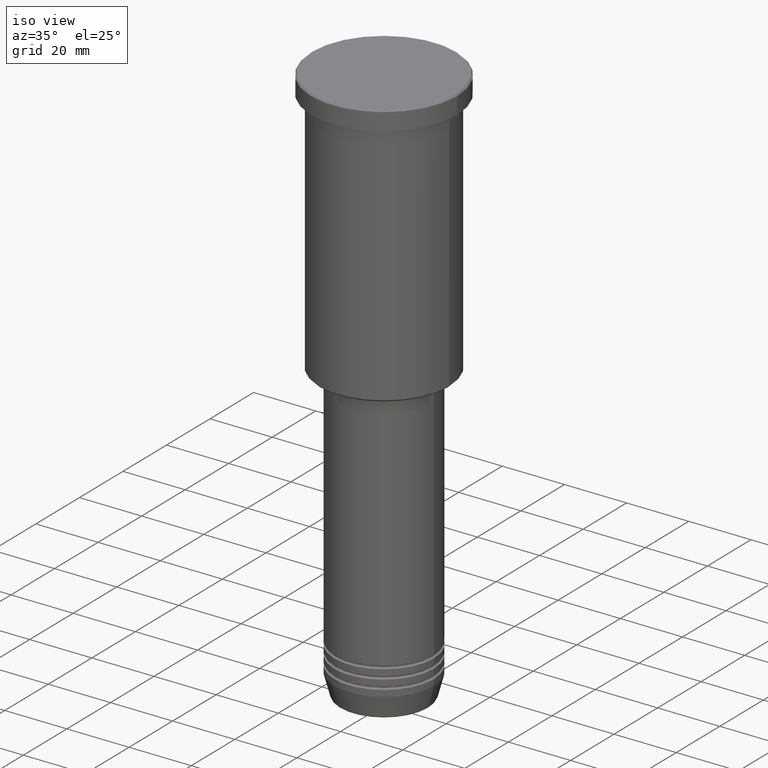
[diagram: clean part render]
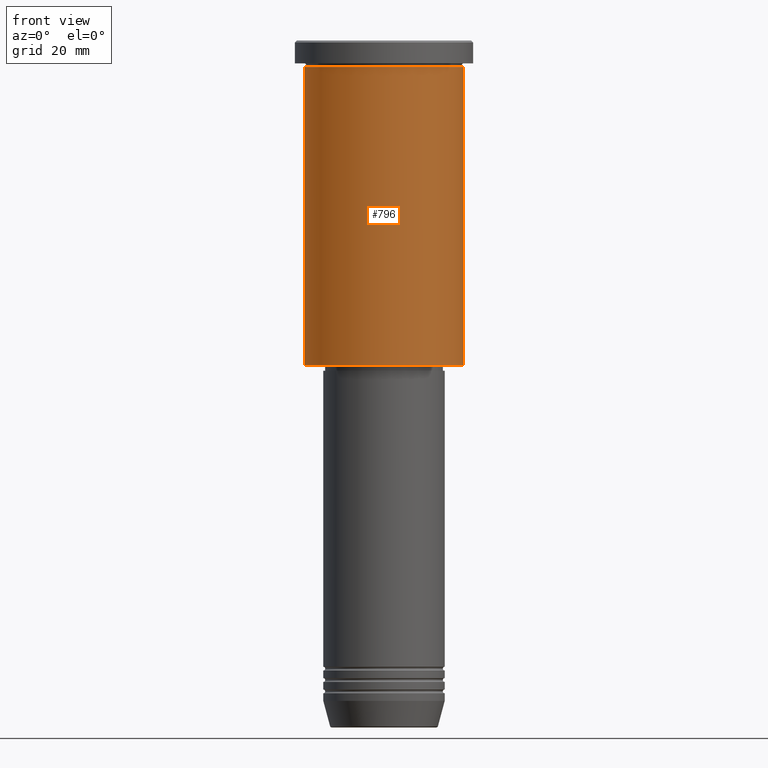
[diagram: tour spotlight — one face highlighted and labeled with its STEP entity id]
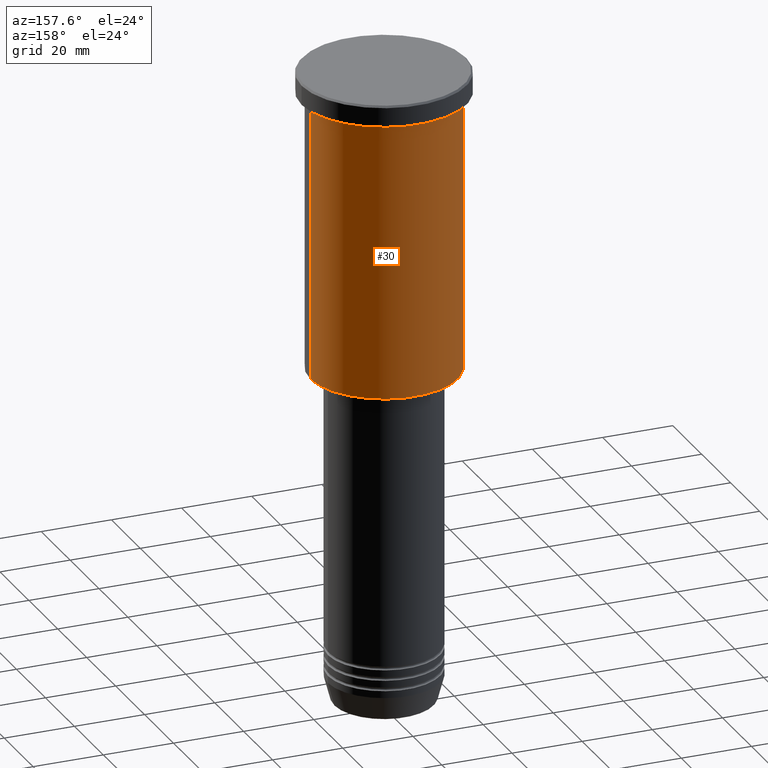
[diagram: tour spotlight — one face highlighted and labeled with its STEP entity id]
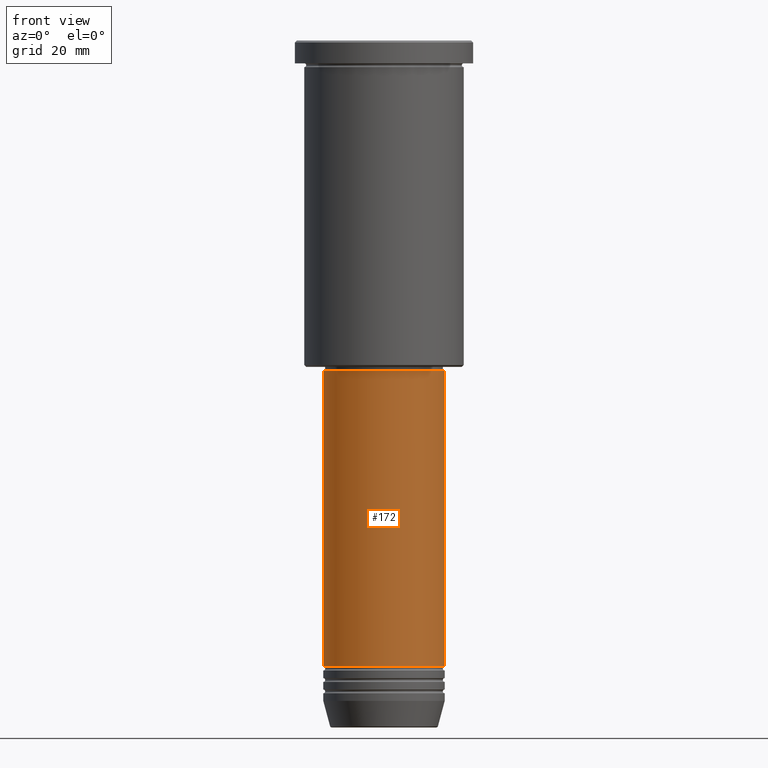
[diagram: tour spotlight — one face highlighted and labeled with its STEP entity id]
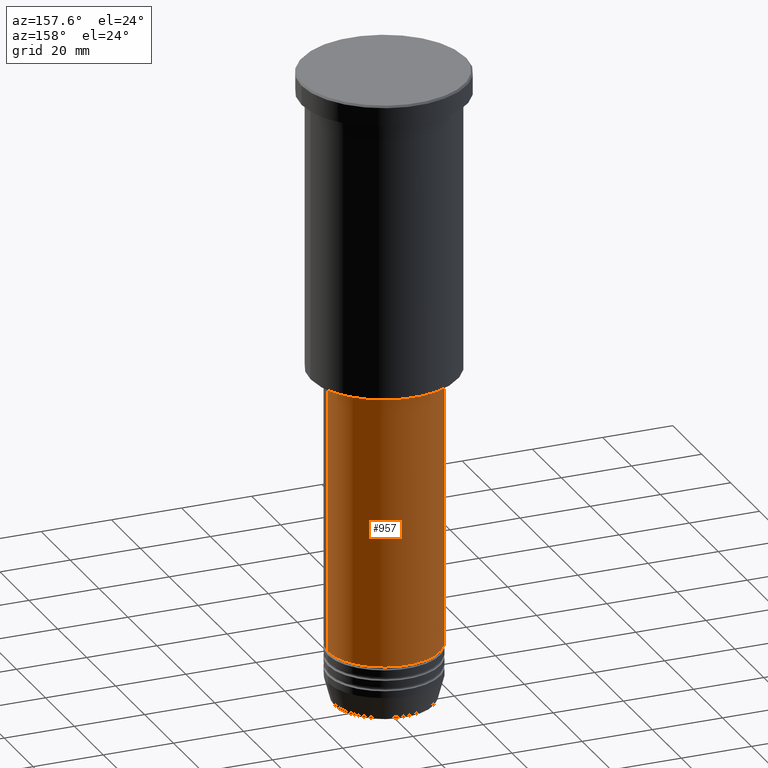
[diagram: tour spotlight — one face highlighted and labeled with its STEP entity id]
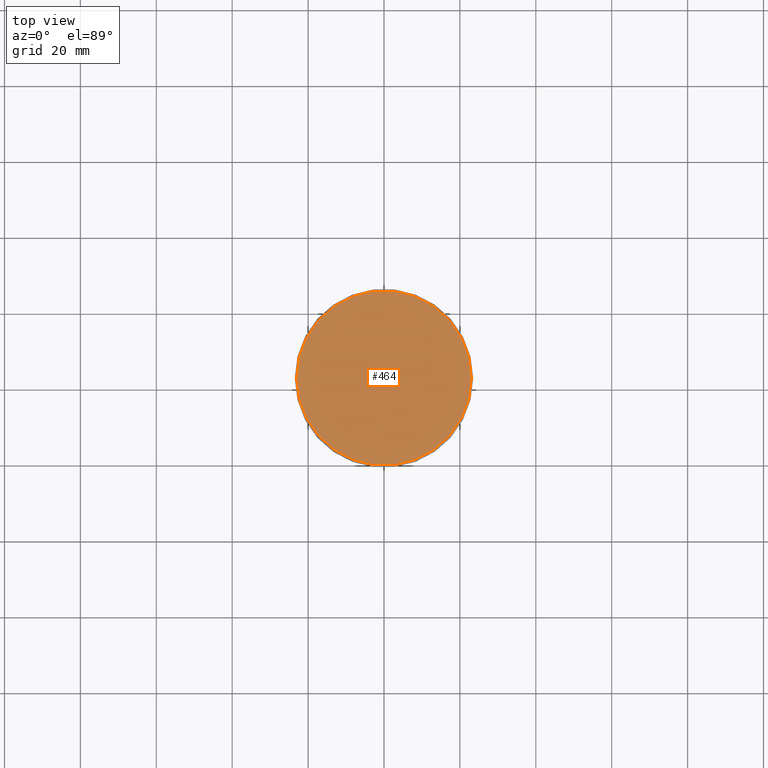
[diagram: tour spotlight — one face highlighted and labeled with its STEP entity id]
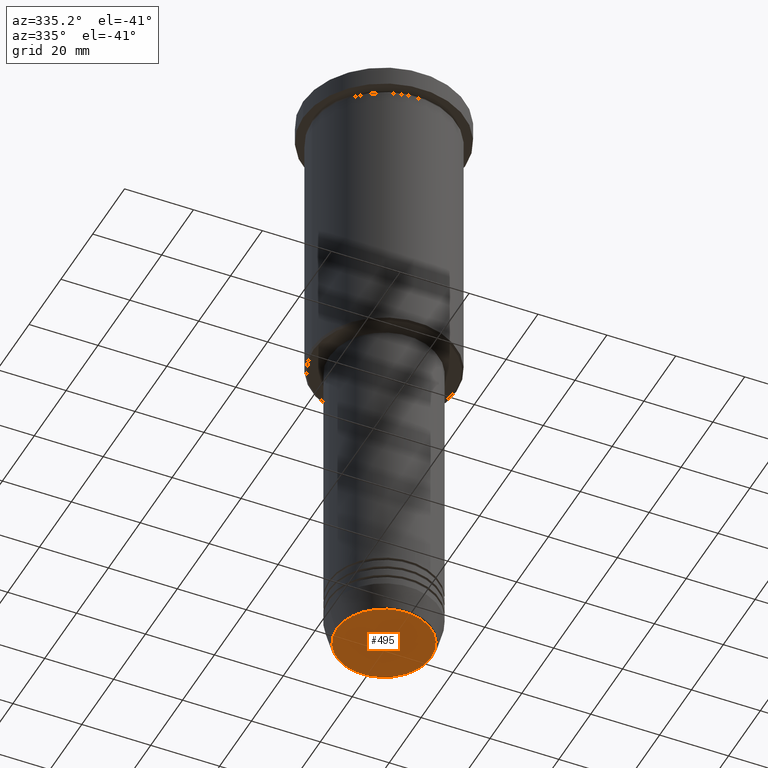
[diagram: tour spotlight — one face highlighted and labeled with its STEP entity id]
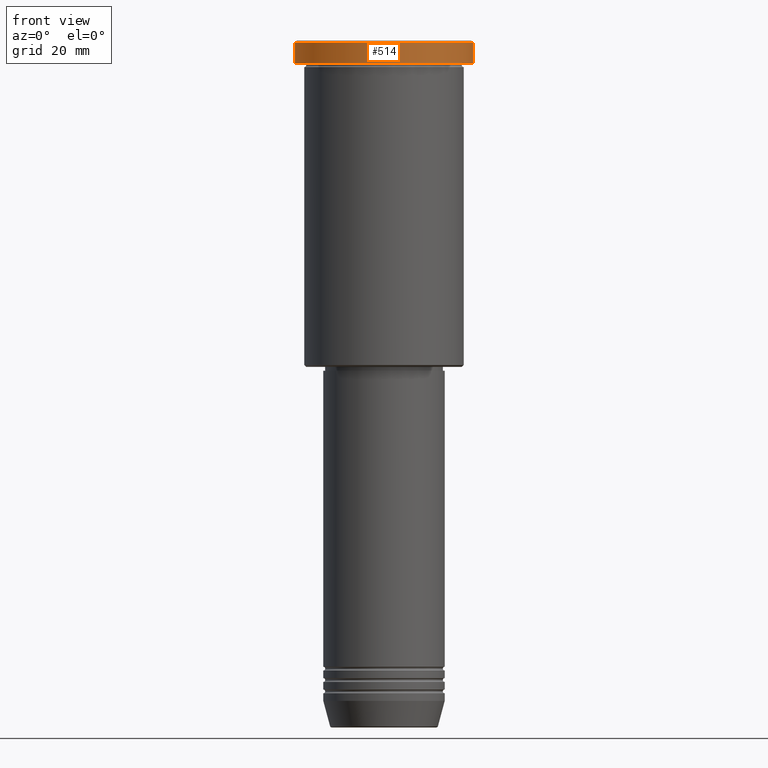
[diagram: tour spotlight — one face highlighted and labeled with its STEP entity id]
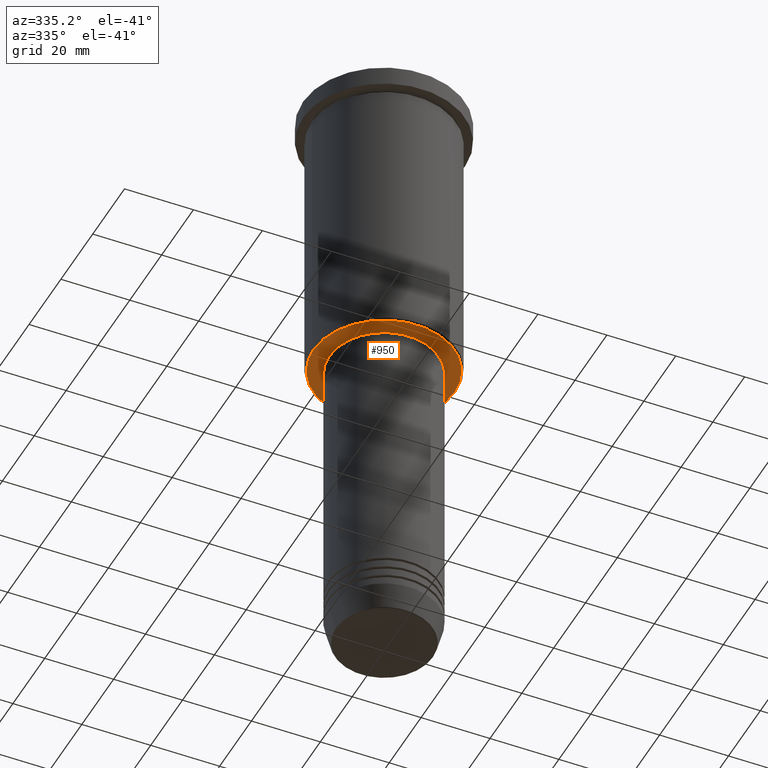
[diagram: tour spotlight — one face highlighted and labeled with its STEP entity id]
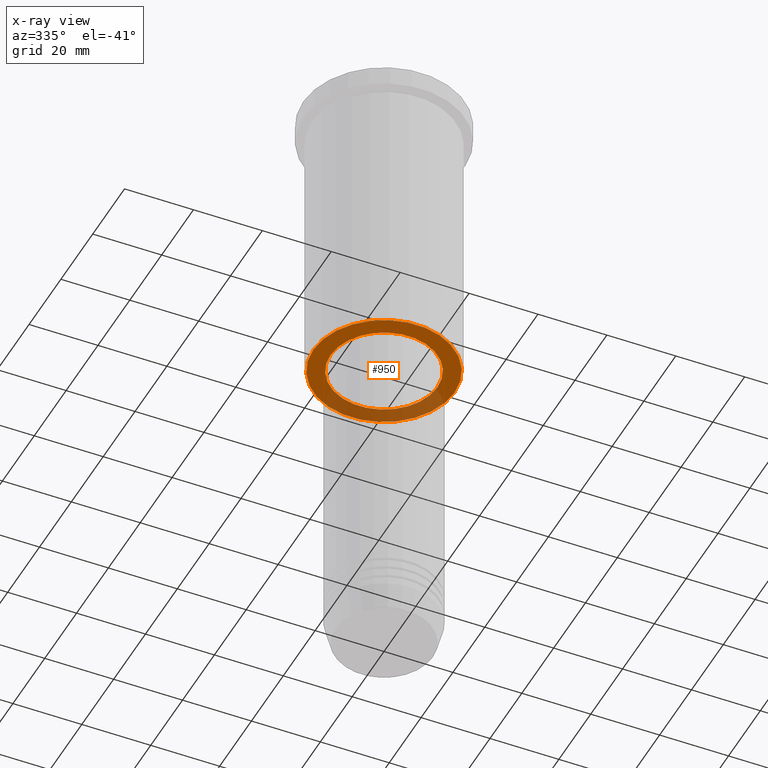
[diagram: x-ray of the same camera — body ghosted, this tour face saturated]
A machine part: a face-by-face anatomy tour. The part has 43 B-rep faces; the first image is the clean iso view, then the 8 largest visible faces are spotlighted one at a time (largest first), each with its STEP entity span.

Face 1 — front view, entity #796. In plain terms, the highlighted cylindrical surface (partial cylindrical patch) has radius 21 mm, axis along (-0, -0, 1).
Definition (entity closure, byte-faithful):
#25 = ORIENTED_EDGE ( 'NONE', *, *, #61, .F. ) ;
#61 = EDGE_CURVE ( 'NONE', #1136, #1170, #937, .T. ) ;
#200 = FACE_OUTER_BOUND ( 'NONE', #813, .T. ) ;
#201 = ORIENTED_EDGE ( 'NONE', *, *, #682, .T. ) ;
#207 = VERTEX_POINT ( 'NONE', #1180 ) ;
#208 = CARTESIAN_POINT ( 'NONE',  ( 0.000000000000000000, 0.000000000000000000, 0.000000000000000000 ) ) ;
#233 = CARTESIAN_POINT ( 'NONE',  ( 21.00000000000000000, 0.000000000000000000, -85.49999999999995737 ) ) ;
#277 = DIRECTION ( 'NONE',  ( -0.000000000000000000, -0.000000000000000000, 1.000000000000000000 ) ) ;
#319 = DIRECTION ( 'NONE',  ( -0.000000000000000000, -0.000000000000000000, 1.000000000000000000 ) ) ;
#328 = CARTESIAN_POINT ( 'NONE',  ( -21.00000000000000000, 2.571758278209441661E-15, 0.000000000000000000 ) ) ;
#338 = DIRECTION ( 'NONE',  ( -0.000000000000000000, -0.000000000000000000, 1.000000000000000000 ) ) ;
#406 = EDGE_CURVE ( 'NONE', #491, #1170, #573, .T. ) ;
#482 = CIRCLE ( 'NONE', #538, 21.00000000000000000 ) ;
#491 = VERTEX_POINT ( 'NONE', #233 ) ;
#505 = LINE ( 'NONE', #328, #659 ) ;
#538 = AXIS2_PLACEMENT_3D ( 'NONE', #631, #338, #1172 ) ;
#561 = CARTESIAN_POINT ( 'NONE',  ( 0.000000000000000000, 0.000000000000000000, -6.999999999999994671 ) ) ;
#573 = LINE ( 'NONE', #629, #939 ) ;
#629 = CARTESIAN_POINT ( 'NONE',  ( 21.00000000000000000, 0.000000000000000000, 0.000000000000000000 ) ) ;
#631 = CARTESIAN_POINT ( 'NONE',  ( 0.000000000000000000, 0.000000000000000000, -85.49999999999995737 ) ) ;
#637 = CARTESIAN_POINT ( 'NONE',  ( -21.00000000000000000, 2.571758278209441661E-15, -6.999999999999994671 ) ) ;
#659 = VECTOR ( 'NONE', #319, 1000.000000000000000 ) ;
#682 = EDGE_CURVE ( 'NONE', #207, #491, #482, .T. ) ;
#728 = DIRECTION ( 'NONE',  ( 1.000000000000000000, 0.000000000000000000, 0.000000000000000000 ) ) ;
#735 = CARTESIAN_POINT ( 'NONE',  ( 21.00000000000000000, 0.000000000000000000, -6.999999999999994671 ) ) ;
#751 = DIRECTION ( 'NONE',  ( 1.000000000000000000, 0.000000000000000000, 0.000000000000000000 ) ) ;
#796 = ADVANCED_FACE ( 'NONE', ( #200 ), #1107, .T. ) ;
#813 = EDGE_LOOP ( 'NONE', ( #1114, #201, #1054, #25 ) ) ;
#818 = DIRECTION ( 'NONE',  ( -0.000000000000000000, -0.000000000000000000, 1.000000000000000000 ) ) ;
#937 = CIRCLE ( 'NONE', #1097, 21.00000000000000000 ) ;
#939 = VECTOR ( 'NONE', #277, 1000.000000000000000 ) ;
#986 = EDGE_CURVE ( 'NONE', #207, #1136, #505, .T. ) ;
#1036 = DIRECTION ( 'NONE',  ( -0.000000000000000000, -0.000000000000000000, 1.000000000000000000 ) ) ;
#1054 = ORIENTED_EDGE ( 'NONE', *, *, #406, .T. ) ;
#1097 = AXIS2_PLACEMENT_3D ( 'NONE', #561, #818, #728 ) ;
#1107 = CYLINDRICAL_SURFACE ( 'NONE', #1174, 21.00000000000000000 ) ;
#1114 = ORIENTED_EDGE ( 'NONE', *, *, #986, .F. ) ;
#1136 = VERTEX_POINT ( 'NONE', #637 ) ;
#1170 = VERTEX_POINT ( 'NONE', #735 ) ;
#1172 = DIRECTION ( 'NONE',  ( -1.000000000000000000, 0.000000000000000000, 0.000000000000000000 ) ) ;
#1174 = AXIS2_PLACEMENT_3D ( 'NONE', #208, #1036, #751 ) ;
#1180 = CARTESIAN_POINT ( 'NONE',  ( -21.00000000000000000, 2.571758278209441661E-15, -85.49999999999995737 ) ) ;

Face 2 — auxiliary view, entity #30. In plain terms, the highlighted cylindrical surface (partial cylindrical patch) has radius 21 mm, axis along (-0, -0, 1).
Definition (entity closure, byte-faithful):
#9 = ORIENTED_EDGE ( 'NONE', *, *, #431, .F. ) ;
#30 = ADVANCED_FACE ( 'NONE', ( #1018 ), #742, .T. ) ;
#99 = AXIS2_PLACEMENT_3D ( 'NONE', #1089, #761, #1022 ) ;
#176 = DIRECTION ( 'NONE',  ( 1.000000000000000000, 0.000000000000000000, 0.000000000000000000 ) ) ;
#207 = VERTEX_POINT ( 'NONE', #1180 ) ;
#233 = CARTESIAN_POINT ( 'NONE',  ( 21.00000000000000000, 0.000000000000000000, -85.49999999999995737 ) ) ;
#244 = DIRECTION ( 'NONE',  ( -0.000000000000000000, -0.000000000000000000, 1.000000000000000000 ) ) ;
#261 = EDGE_CURVE ( 'NONE', #491, #207, #435, .T. ) ;
#277 = DIRECTION ( 'NONE',  ( -0.000000000000000000, -0.000000000000000000, 1.000000000000000000 ) ) ;
#290 = CIRCLE ( 'NONE', #416, 21.00000000000000000 ) ;
#311 = EDGE_LOOP ( 'NONE', ( #632, #506, #9, #839 ) ) ;
#319 = DIRECTION ( 'NONE',  ( -0.000000000000000000, -0.000000000000000000, 1.000000000000000000 ) ) ;
#328 = CARTESIAN_POINT ( 'NONE',  ( -21.00000000000000000, 2.571758278209441661E-15, 0.000000000000000000 ) ) ;
#375 = DIRECTION ( 'NONE',  ( 1.000000000000000000, 0.000000000000000000, 0.000000000000000000 ) ) ;
#406 = EDGE_CURVE ( 'NONE', #491, #1170, #573, .T. ) ;
#416 = AXIS2_PLACEMENT_3D ( 'NONE', #1000, #244, #176 ) ;
#431 = EDGE_CURVE ( 'NONE', #1170, #1136, #290, .T. ) ;
#435 = CIRCLE ( 'NONE', #99, 21.00000000000000000 ) ;
#491 = VERTEX_POINT ( 'NONE', #233 ) ;
#505 = LINE ( 'NONE', #328, #659 ) ;
#506 = ORIENTED_EDGE ( 'NONE', *, *, #986, .T. ) ;
#573 = LINE ( 'NONE', #629, #939 ) ;
#613 = AXIS2_PLACEMENT_3D ( 'NONE', #711, #1081, #375 ) ;
#629 = CARTESIAN_POINT ( 'NONE',  ( 21.00000000000000000, 0.000000000000000000, 0.000000000000000000 ) ) ;
#632 = ORIENTED_EDGE ( 'NONE', *, *, #261, .T. ) ;
#637 = CARTESIAN_POINT ( 'NONE',  ( -21.00000000000000000, 2.571758278209441661E-15, -6.999999999999994671 ) ) ;
#659 = VECTOR ( 'NONE', #319, 1000.000000000000000 ) ;
#711 = CARTESIAN_POINT ( 'NONE',  ( 0.000000000000000000, 0.000000000000000000, 0.000000000000000000 ) ) ;
#735 = CARTESIAN_POINT ( 'NONE',  ( 21.00000000000000000, 0.000000000000000000, -6.999999999999994671 ) ) ;
#742 = CYLINDRICAL_SURFACE ( 'NONE', #613, 21.00000000000000000 ) ;
#761 = DIRECTION ( 'NONE',  ( -0.000000000000000000, -0.000000000000000000, 1.000000000000000000 ) ) ;
#839 = ORIENTED_EDGE ( 'NONE', *, *, #406, .F. ) ;
#939 = VECTOR ( 'NONE', #277, 1000.000000000000000 ) ;
#986 = EDGE_CURVE ( 'NONE', #207, #1136, #505, .T. ) ;
#1000 = CARTESIAN_POINT ( 'NONE',  ( 0.000000000000000000, 0.000000000000000000, -6.999999999999994671 ) ) ;
#1018 = FACE_OUTER_BOUND ( 'NONE', #311, .T. ) ;
#1022 = DIRECTION ( 'NONE',  ( -1.000000000000000000, 0.000000000000000000, 0.000000000000000000 ) ) ;
#1081 = DIRECTION ( 'NONE',  ( -0.000000000000000000, -0.000000000000000000, 1.000000000000000000 ) ) ;
#1089 = CARTESIAN_POINT ( 'NONE',  ( 0.000000000000000000, 0.000000000000000000, -85.49999999999995737 ) ) ;
#1136 = VERTEX_POINT ( 'NONE', #637 ) ;
#1170 = VERTEX_POINT ( 'NONE', #735 ) ;
#1180 = CARTESIAN_POINT ( 'NONE',  ( -21.00000000000000000, 2.571758278209441661E-15, -85.49999999999995737 ) ) ;

Face 3 — front view, entity #172. In plain terms, the highlighted cylindrical surface (partial cylindrical patch) has radius 16 mm, axis along (-0, -0, 1).
Definition (entity closure, byte-faithful):
#4 = CARTESIAN_POINT ( 'NONE',  ( 0.000000000000000000, 0.000000000000000000, -87.00000000000002842 ) ) ;
#63 = AXIS2_PLACEMENT_3D ( 'NONE', #719, #250, #432 ) ;
#82 = ORIENTED_EDGE ( 'NONE', *, *, #339, .T. ) ;
#111 = DIRECTION ( 'NONE',  ( 1.000000000000000000, 0.000000000000000000, 0.000000000000000000 ) ) ;
#172 = ADVANCED_FACE ( 'NONE', ( #589 ), #582, .T. ) ;
#174 = ORIENTED_EDGE ( 'NONE', *, *, #703, .T. ) ;
#199 = EDGE_CURVE ( 'NONE', #1048, #429, #1070, .T. ) ;
#230 = EDGE_CURVE ( 'NONE', #429, #1017, #434, .T. ) ;
#248 = CARTESIAN_POINT ( 'NONE',  ( 16.00000000000000000, 0.000000000000000000, 0.000000000000000000 ) ) ;
#250 = DIRECTION ( 'NONE',  ( -0.000000000000000000, -0.000000000000000000, 1.000000000000000000 ) ) ;
#271 = DIRECTION ( 'NONE',  ( -0.000000000000000000, -0.000000000000000000, 1.000000000000000000 ) ) ;
#326 = VECTOR ( 'NONE', #271, 1000.000000000000000 ) ;
#339 = EDGE_CURVE ( 'NONE', #1048, #699, #1115, .T. ) ;
#346 = LINE ( 'NONE', #248, #326 ) ;
#376 = DIRECTION ( 'NONE',  ( -0.000000000000000000, -0.000000000000000000, 1.000000000000000000 ) ) ;
#425 = CARTESIAN_POINT ( 'NONE',  ( 16.00000000000000000, 0.000000000000000000, -164.9999999999999716 ) ) ;
#429 = VERTEX_POINT ( 'NONE', #623 ) ;
#432 = DIRECTION ( 'NONE',  ( 1.000000000000000000, 0.000000000000000000, 0.000000000000000000 ) ) ;
#434 = CIRCLE ( 'NONE', #1113, 16.00000000000000000 ) ;
#490 = DIRECTION ( 'NONE',  ( 1.000000000000000000, 0.000000000000000000, 0.000000000000000000 ) ) ;
#497 = EDGE_LOOP ( 'NONE', ( #1088, #82, #174, #1060 ) ) ;
#542 = CARTESIAN_POINT ( 'NONE',  ( -16.00000000000000000, 1.959434878635765131E-15, 0.000000000000000000 ) ) ;
#582 = CYLINDRICAL_SURFACE ( 'NONE', #1149, 16.00000000000000000 ) ;
#589 = FACE_OUTER_BOUND ( 'NONE', #497, .T. ) ;
#604 = CARTESIAN_POINT ( 'NONE',  ( 0.000000000000000000, 0.000000000000000000, 0.000000000000000000 ) ) ;
#623 = CARTESIAN_POINT ( 'NONE',  ( -16.00000000000000000, 1.959434878635765131E-15, -87.00000000000002842 ) ) ;
#634 = VECTOR ( 'NONE', #996, 1000.000000000000000 ) ;
#695 = CARTESIAN_POINT ( 'NONE',  ( 16.00000000000000000, 0.000000000000000000, -87.00000000000002842 ) ) ;
#699 = VERTEX_POINT ( 'NONE', #425 ) ;
#703 = EDGE_CURVE ( 'NONE', #699, #1017, #346, .T. ) ;
#719 = CARTESIAN_POINT ( 'NONE',  ( 0.000000000000000000, 0.000000000000000000, -164.9999999999999716 ) ) ;
#946 = DIRECTION ( 'NONE',  ( -0.000000000000000000, -0.000000000000000000, 1.000000000000000000 ) ) ;
#996 = DIRECTION ( 'NONE',  ( -0.000000000000000000, -0.000000000000000000, 1.000000000000000000 ) ) ;
#1017 = VERTEX_POINT ( 'NONE', #695 ) ;
#1048 = VERTEX_POINT ( 'NONE', #1093 ) ;
#1060 = ORIENTED_EDGE ( 'NONE', *, *, #230, .F. ) ;
#1070 = LINE ( 'NONE', #542, #634 ) ;
#1088 = ORIENTED_EDGE ( 'NONE', *, *, #199, .F. ) ;
#1093 = CARTESIAN_POINT ( 'NONE',  ( -16.00000000000000000, 1.959434878635765131E-15, -164.9999999999999716 ) ) ;
#1113 = AXIS2_PLACEMENT_3D ( 'NONE', #4, #376, #111 ) ;
#1115 = CIRCLE ( 'NONE', #63, 16.00000000000000000 ) ;
#1149 = AXIS2_PLACEMENT_3D ( 'NONE', #604, #946, #490 ) ;

Face 4 — auxiliary view, entity #957. In plain terms, the highlighted cylindrical surface (partial cylindrical patch) has radius 16 mm, axis along (-0, -0, 1).
Definition (entity closure, byte-faithful):
#53 = DIRECTION ( 'NONE',  ( -0.000000000000000000, -0.000000000000000000, 1.000000000000000000 ) ) ;
#86 = EDGE_CURVE ( 'NONE', #699, #1048, #843, .T. ) ;
#145 = EDGE_LOOP ( 'NONE', ( #295, #1123, #696, #187 ) ) ;
#152 = AXIS2_PLACEMENT_3D ( 'NONE', #156, #1084, #906 ) ;
#156 = CARTESIAN_POINT ( 'NONE',  ( 0.000000000000000000, 0.000000000000000000, -87.00000000000002842 ) ) ;
#166 = DIRECTION ( 'NONE',  ( -0.000000000000000000, -0.000000000000000000, 1.000000000000000000 ) ) ;
#187 = ORIENTED_EDGE ( 'NONE', *, *, #703, .F. ) ;
#193 = AXIS2_PLACEMENT_3D ( 'NONE', #547, #166, #718 ) ;
#199 = EDGE_CURVE ( 'NONE', #1048, #429, #1070, .T. ) ;
#248 = CARTESIAN_POINT ( 'NONE',  ( 16.00000000000000000, 0.000000000000000000, 0.000000000000000000 ) ) ;
#271 = DIRECTION ( 'NONE',  ( -0.000000000000000000, -0.000000000000000000, 1.000000000000000000 ) ) ;
#292 = CIRCLE ( 'NONE', #152, 16.00000000000000000 ) ;
#295 = ORIENTED_EDGE ( 'NONE', *, *, #86, .T. ) ;
#326 = VECTOR ( 'NONE', #271, 1000.000000000000000 ) ;
#346 = LINE ( 'NONE', #248, #326 ) ;
#425 = CARTESIAN_POINT ( 'NONE',  ( 16.00000000000000000, 0.000000000000000000, -164.9999999999999716 ) ) ;
#429 = VERTEX_POINT ( 'NONE', #623 ) ;
#438 = AXIS2_PLACEMENT_3D ( 'NONE', #1160, #53, #1146 ) ;
#542 = CARTESIAN_POINT ( 'NONE',  ( -16.00000000000000000, 1.959434878635765131E-15, 0.000000000000000000 ) ) ;
#547 = CARTESIAN_POINT ( 'NONE',  ( 0.000000000000000000, 0.000000000000000000, -164.9999999999999716 ) ) ;
#623 = CARTESIAN_POINT ( 'NONE',  ( -16.00000000000000000, 1.959434878635765131E-15, -87.00000000000002842 ) ) ;
#634 = VECTOR ( 'NONE', #996, 1000.000000000000000 ) ;
#678 = CYLINDRICAL_SURFACE ( 'NONE', #438, 16.00000000000000000 ) ;
#695 = CARTESIAN_POINT ( 'NONE',  ( 16.00000000000000000, 0.000000000000000000, -87.00000000000002842 ) ) ;
#696 = ORIENTED_EDGE ( 'NONE', *, *, #1068, .F. ) ;
#699 = VERTEX_POINT ( 'NONE', #425 ) ;
#703 = EDGE_CURVE ( 'NONE', #699, #1017, #346, .T. ) ;
#718 = DIRECTION ( 'NONE',  ( 1.000000000000000000, 0.000000000000000000, 0.000000000000000000 ) ) ;
#843 = CIRCLE ( 'NONE', #193, 16.00000000000000000 ) ;
#906 = DIRECTION ( 'NONE',  ( 1.000000000000000000, 0.000000000000000000, 0.000000000000000000 ) ) ;
#947 = FACE_OUTER_BOUND ( 'NONE', #145, .T. ) ;
#957 = ADVANCED_FACE ( 'NONE', ( #947 ), #678, .T. ) ;
#996 = DIRECTION ( 'NONE',  ( -0.000000000000000000, -0.000000000000000000, 1.000000000000000000 ) ) ;
#1017 = VERTEX_POINT ( 'NONE', #695 ) ;
#1048 = VERTEX_POINT ( 'NONE', #1093 ) ;
#1068 = EDGE_CURVE ( 'NONE', #1017, #429, #292, .T. ) ;
#1070 = LINE ( 'NONE', #542, #634 ) ;
#1084 = DIRECTION ( 'NONE',  ( -0.000000000000000000, -0.000000000000000000, 1.000000000000000000 ) ) ;
#1093 = CARTESIAN_POINT ( 'NONE',  ( -16.00000000000000000, 1.959434878635765131E-15, -164.9999999999999716 ) ) ;
#1123 = ORIENTED_EDGE ( 'NONE', *, *, #199, .T. ) ;
#1146 = DIRECTION ( 'NONE',  ( 1.000000000000000000, 0.000000000000000000, 0.000000000000000000 ) ) ;
#1160 = CARTESIAN_POINT ( 'NONE',  ( 0.000000000000000000, 0.000000000000000000, 0.000000000000000000 ) ) ;

Face 5 — top view, entity #464. In plain terms, the highlighted planar face has unit normal (0, -0, 1).
Definition (entity closure, byte-faithful):
#100 = AXIS2_PLACEMENT_3D ( 'NONE', #1010, #165, #641 ) ;
#110 = EDGE_CURVE ( 'NONE', #522, #1181, #1073, .T. ) ;
#165 = DIRECTION ( 'NONE',  ( -0.000000000000000000, -0.000000000000000000, 1.000000000000000000 ) ) ;
#186 = DIRECTION ( 'NONE',  ( 1.000000000000000000, 0.000000000000000000, 0.000000000000000000 ) ) ;
#459 = CARTESIAN_POINT ( 'NONE',  ( 0.000000000000000000, 0.000000000000000000, 0.000000000000000000 ) ) ;
#464 = ADVANCED_FACE ( 'NONE', ( #597 ), #1028, .T. ) ;
#522 = VERTEX_POINT ( 'NONE', #628 ) ;
#530 = DIRECTION ( 'NONE',  ( 1.000000000000000000, 0.000000000000000000, 0.000000000000000000 ) ) ;
#597 = FACE_OUTER_BOUND ( 'NONE', #822, .T. ) ;
#624 = EDGE_CURVE ( 'NONE', #1181, #522, #737, .T. ) ;
#627 = CARTESIAN_POINT ( 'NONE',  ( 0.000000000000000000, 0.000000000000000000, 0.000000000000000000 ) ) ;
#628 = CARTESIAN_POINT ( 'NONE',  ( 23.00000000000002487, 2.847303808017597717E-15, 0.000000000000000000 ) ) ;
#641 = DIRECTION ( 'NONE',  ( 1.000000000000000000, 0.000000000000000000, 0.000000000000000000 ) ) ;
#737 = CIRCLE ( 'NONE', #100, 23.00000000000002487 ) ;
#775 = ORIENTED_EDGE ( 'NONE', *, *, #110, .T. ) ;
#795 = CARTESIAN_POINT ( 'NONE',  ( -23.00000000000002487, 0.000000000000000000, 0.000000000000000000 ) ) ;
#817 = DIRECTION ( 'NONE',  ( 0.000000000000000000, -0.000000000000000000, 1.000000000000000000 ) ) ;
#822 = EDGE_LOOP ( 'NONE', ( #1144, #775 ) ) ;
#880 = AXIS2_PLACEMENT_3D ( 'NONE', #459, #817, #186 ) ;
#988 = DIRECTION ( 'NONE',  ( -0.000000000000000000, -0.000000000000000000, 1.000000000000000000 ) ) ;
#1010 = CARTESIAN_POINT ( 'NONE',  ( 0.000000000000000000, 0.000000000000000000, 0.000000000000000000 ) ) ;
#1028 = PLANE ( 'NONE',  #880 ) ;
#1040 = AXIS2_PLACEMENT_3D ( 'NONE', #627, #988, #530 ) ;
#1073 = CIRCLE ( 'NONE', #1040, 23.00000000000002487 ) ;
#1144 = ORIENTED_EDGE ( 'NONE', *, *, #624, .T. ) ;
#1181 = VERTEX_POINT ( 'NONE', #795 ) ;

Face 6 — auxiliary view, entity #495. In plain terms, the highlighted planar face has unit normal (0, -0, 1).
Definition (entity closure, byte-faithful):
#6 = EDGE_CURVE ( 'NONE', #694, #106, #1133, .T. ) ;
#60 = DIRECTION ( 'NONE',  ( 0.000000000000000000, 0.000000000000000000, -1.000000000000000000 ) ) ;
#106 = VERTEX_POINT ( 'NONE', #258 ) ;
#115 = AXIS2_PLACEMENT_3D ( 'NONE', #337, #60, #159 ) ;
#124 = PLANE ( 'NONE',  #302 ) ;
#143 = ORIENTED_EDGE ( 'NONE', *, *, #1148, .T. ) ;
#159 = DIRECTION ( 'NONE',  ( 1.000000000000000000, 0.000000000000000000, 0.000000000000000000 ) ) ;
#258 = CARTESIAN_POINT ( 'NONE',  ( 13.74069215899266894, 0.000000000000000000, -181.0000000000000000 ) ) ;
#302 = AXIS2_PLACEMENT_3D ( 'NONE', #683, #1043, #935 ) ;
#321 = FACE_OUTER_BOUND ( 'NONE', #521, .T. ) ;
#337 = CARTESIAN_POINT ( 'NONE',  ( 0.000000000000000000, 0.000000000000000000, -181.0000000000000000 ) ) ;
#351 = CARTESIAN_POINT ( 'NONE',  ( -13.74069215899266894, 1.712322416342417563E-15, -181.0000000000000000 ) ) ;
#495 = ADVANCED_FACE ( 'NONE', ( #321 ), #124, .F. ) ;
#521 = EDGE_LOOP ( 'NONE', ( #143, #982 ) ) ;
#544 = DIRECTION ( 'NONE',  ( 0.000000000000000000, 0.000000000000000000, -1.000000000000000000 ) ) ;
#657 = CIRCLE ( 'NONE', #884, 13.74069215899266894 ) ;
#683 = CARTESIAN_POINT ( 'NONE',  ( 0.000000000000000000, 0.000000000000000000, -181.0000000000000000 ) ) ;
#694 = VERTEX_POINT ( 'NONE', #351 ) ;
#884 = AXIS2_PLACEMENT_3D ( 'NONE', #969, #544, #892 ) ;
#892 = DIRECTION ( 'NONE',  ( 1.000000000000000000, 0.000000000000000000, 0.000000000000000000 ) ) ;
#935 = DIRECTION ( 'NONE',  ( 1.000000000000000000, 0.000000000000000000, 0.000000000000000000 ) ) ;
#969 = CARTESIAN_POINT ( 'NONE',  ( 0.000000000000000000, 0.000000000000000000, -181.0000000000000000 ) ) ;
#982 = ORIENTED_EDGE ( 'NONE', *, *, #6, .T. ) ;
#1043 = DIRECTION ( 'NONE',  ( 0.000000000000000000, -0.000000000000000000, 1.000000000000000000 ) ) ;
#1133 = CIRCLE ( 'NONE', #115, 13.74069215899266894 ) ;
#1148 = EDGE_CURVE ( 'NONE', #106, #694, #657, .T. ) ;

Face 7 — front view, entity #514. In plain terms, the highlighted cylindrical surface (partial cylindrical patch) has radius 23.5 mm, axis along (-0, -0, 1).
Definition (entity closure, byte-faithful):
#46 = ORIENTED_EDGE ( 'NONE', *, *, #608, .T. ) ;
#77 = VECTOR ( 'NONE', #626, 1000.000000000000000 ) ;
#154 = CARTESIAN_POINT ( 'NONE',  ( -23.50000000000000000, 2.877919977996280320E-15, 0.000000000000000000 ) ) ;
#157 = VERTEX_POINT ( 'NONE', #777 ) ;
#194 = LINE ( 'NONE', #154, #195 ) ;
#195 = VECTOR ( 'NONE', #259, 1000.000000000000000 ) ;
#222 = DIRECTION ( 'NONE',  ( -0.000000000000000000, -0.000000000000000000, 1.000000000000000000 ) ) ;
#234 = ORIENTED_EDGE ( 'NONE', *, *, #689, .T. ) ;
#252 = EDGE_CURVE ( 'NONE', #1094, #552, #194, .T. ) ;
#255 = DIRECTION ( 'NONE',  ( -0.000000000000000000, -0.000000000000000000, 1.000000000000000000 ) ) ;
#259 = DIRECTION ( 'NONE',  ( -0.000000000000000000, -0.000000000000000000, 1.000000000000000000 ) ) ;
#310 = CARTESIAN_POINT ( 'NONE',  ( 0.000000000000000000, 0.000000000000000000, 0.000000000000000000 ) ) ;
#365 = AXIS2_PLACEMENT_3D ( 'NONE', #512, #440, #489 ) ;
#367 = CIRCLE ( 'NONE', #501, 23.50000000000000000 ) ;
#440 = DIRECTION ( 'NONE',  ( 0.000000000000000000, 0.000000000000000000, -1.000000000000000000 ) ) ;
#489 = DIRECTION ( 'NONE',  ( 1.000000000000000000, 0.000000000000000000, 0.000000000000000000 ) ) ;
#501 = AXIS2_PLACEMENT_3D ( 'NONE', #630, #255, #823 ) ;
#512 = CARTESIAN_POINT ( 'NONE',  ( 0.000000000000000000, 0.000000000000000000, -0.5000000000000004441 ) ) ;
#514 = ADVANCED_FACE ( 'NONE', ( #873 ), #1058, .T. ) ;
#537 = CARTESIAN_POINT ( 'NONE',  ( -23.50000000000000000, 2.877919977996280320E-15, -5.999999999999994671 ) ) ;
#545 = LINE ( 'NONE', #1095, #77 ) ;
#552 = VERTEX_POINT ( 'NONE', #981 ) ;
#568 = ORIENTED_EDGE ( 'NONE', *, *, #1139, .T. ) ;
#576 = CARTESIAN_POINT ( 'NONE',  ( 23.50000000000000000, 0.000000000000000000, -0.5000000000000004441 ) ) ;
#608 = EDGE_CURVE ( 'NONE', #859, #552, #961, .T. ) ;
#626 = DIRECTION ( 'NONE',  ( -0.000000000000000000, -0.000000000000000000, 1.000000000000000000 ) ) ;
#630 = CARTESIAN_POINT ( 'NONE',  ( 0.000000000000000000, 0.000000000000000000, -5.999999999999994671 ) ) ;
#689 = EDGE_CURVE ( 'NONE', #157, #859, #545, .T. ) ;
#777 = CARTESIAN_POINT ( 'NONE',  ( 23.50000000000000000, 0.000000000000000000, -5.999999999999994671 ) ) ;
#823 = DIRECTION ( 'NONE',  ( 1.000000000000000000, 0.000000000000000000, 0.000000000000000000 ) ) ;
#859 = VERTEX_POINT ( 'NONE', #576 ) ;
#873 = FACE_OUTER_BOUND ( 'NONE', #1145, .T. ) ;
#954 = DIRECTION ( 'NONE',  ( 1.000000000000000000, 0.000000000000000000, 0.000000000000000000 ) ) ;
#961 = CIRCLE ( 'NONE', #365, 23.50000000000000000 ) ;
#981 = CARTESIAN_POINT ( 'NONE',  ( -23.50000000000000000, 2.877919977996280320E-15, -0.5000000000000004441 ) ) ;
#1058 = CYLINDRICAL_SURFACE ( 'NONE', #1074, 23.50000000000000000 ) ;
#1074 = AXIS2_PLACEMENT_3D ( 'NONE', #310, #222, #954 ) ;
#1094 = VERTEX_POINT ( 'NONE', #537 ) ;
#1095 = CARTESIAN_POINT ( 'NONE',  ( 23.50000000000000000, 0.000000000000000000, 0.000000000000000000 ) ) ;
#1139 = EDGE_CURVE ( 'NONE', #1094, #157, #367, .T. ) ;
#1145 = EDGE_LOOP ( 'NONE', ( #1183, #568, #234, #46 ) ) ;
#1183 = ORIENTED_EDGE ( 'NONE', *, *, #252, .F. ) ;

Face 8 — auxiliary view, entity #950. An x-ray twin of the same camera follows (body ghosted, this face saturated) — the face is partly hidden behind the body. In plain terms, the highlighted planar face has unit normal (0, 0, -1).
Definition (entity closure, byte-faithful):
#3 = DIRECTION ( 'NONE',  ( 0.000000000000000000, 0.000000000000000000, -1.000000000000000000 ) ) ;
#13 = CIRCLE ( 'NONE', #325, 15.50000000000000000 ) ;
#65 = AXIS2_PLACEMENT_3D ( 'NONE', #407, #1046, #224 ) ;
#75 = DIRECTION ( 'NONE',  ( -1.000000000000000000, 0.000000000000000000, 0.000000000000000000 ) ) ;
#89 = ORIENTED_EDGE ( 'NONE', *, *, #738, .T. ) ;
#90 = DIRECTION ( 'NONE',  ( 0.000000000000000000, 0.000000000000000000, -1.000000000000000000 ) ) ;
#127 = FACE_BOUND ( 'NONE', #287, .T. ) ;
#180 = CARTESIAN_POINT ( 'NONE',  ( 20.49999999999995026, 0.000000000000000000, -86.00000000000000000 ) ) ;
#197 = DIRECTION ( 'NONE',  ( 1.000000000000000000, 0.000000000000000000, 0.000000000000000000 ) ) ;
#224 = DIRECTION ( 'NONE',  ( -1.000000000000000000, 0.000000000000000000, -0.000000000000000000 ) ) ;
#238 = ORIENTED_EDGE ( 'NONE', *, *, #662, .T. ) ;
#257 = CARTESIAN_POINT ( 'NONE',  ( 0.000000000000000000, 0.000000000000000000, -86.00000000000000000 ) ) ;
#267 = EDGE_LOOP ( 'NONE', ( #238, #89 ) ) ;
#287 = EDGE_LOOP ( 'NONE', ( #780, #747 ) ) ;
#296 = EDGE_CURVE ( 'NONE', #358, #1001, #13, .T. ) ;
#306 = VERTEX_POINT ( 'NONE', #754 ) ;
#309 = EDGE_CURVE ( 'NONE', #1001, #358, #733, .T. ) ;
#325 = AXIS2_PLACEMENT_3D ( 'NONE', #1008, #914, #1116 ) ;
#332 = CARTESIAN_POINT ( 'NONE',  ( -15.50000000000000000, 1.898202538678397557E-15, -86.00000000000000000 ) ) ;
#358 = VERTEX_POINT ( 'NONE', #569 ) ;
#369 = DIRECTION ( 'NONE',  ( -0.000000000000000000, -0.000000000000000000, 1.000000000000000000 ) ) ;
#378 = CARTESIAN_POINT ( 'NONE',  ( 0.000000000000000000, 0.000000000000000000, -86.00000000000000000 ) ) ;
#407 = CARTESIAN_POINT ( 'NONE',  ( 0.000000000000000000, 21.00000000000000000, -86.00000000000000000 ) ) ;
#559 = AXIS2_PLACEMENT_3D ( 'NONE', #378, #369, #197 ) ;
#569 = CARTESIAN_POINT ( 'NONE',  ( 15.50000000000000000, 0.000000000000000000, -86.00000000000000000 ) ) ;
#662 = EDGE_CURVE ( 'NONE', #714, #306, #806, .T. ) ;
#687 = AXIS2_PLACEMENT_3D ( 'NONE', #257, #3, #1179 ) ;
#714 = VERTEX_POINT ( 'NONE', #180 ) ;
#733 = CIRCLE ( 'NONE', #559, 15.50000000000000000 ) ;
#738 = EDGE_CURVE ( 'NONE', #306, #714, #1057, .T. ) ;
#747 = ORIENTED_EDGE ( 'NONE', *, *, #309, .T. ) ;
#754 = CARTESIAN_POINT ( 'NONE',  ( -20.49999999999995026, 2.541142108230754719E-15, -86.00000000000000000 ) ) ;
#768 = FACE_OUTER_BOUND ( 'NONE', #267, .T. ) ;
#780 = ORIENTED_EDGE ( 'NONE', *, *, #296, .T. ) ;
#806 = CIRCLE ( 'NONE', #687, 20.49999999999995026 ) ;
#913 = CARTESIAN_POINT ( 'NONE',  ( 0.000000000000000000, 0.000000000000000000, -86.00000000000000000 ) ) ;
#914 = DIRECTION ( 'NONE',  ( -0.000000000000000000, -0.000000000000000000, 1.000000000000000000 ) ) ;
#950 = ADVANCED_FACE ( 'NONE', ( #768, #127 ), #1061, .T. ) ;
#971 = AXIS2_PLACEMENT_3D ( 'NONE', #913, #90, #75 ) ;
#1001 = VERTEX_POINT ( 'NONE', #332 ) ;
#1008 = CARTESIAN_POINT ( 'NONE',  ( 0.000000000000000000, 0.000000000000000000, -86.00000000000000000 ) ) ;
#1046 = DIRECTION ( 'NONE',  ( 0.000000000000000000, 0.000000000000000000, -1.000000000000000000 ) ) ;
#1057 = CIRCLE ( 'NONE', #971, 20.49999999999995026 ) ;
#1061 = PLANE ( 'NONE',  #65 ) ;
#1116 = DIRECTION ( 'NONE',  ( 1.000000000000000000, 0.000000000000000000, 0.000000000000000000 ) ) ;
#1179 = DIRECTION ( 'NONE',  ( -1.000000000000000000, 0.000000000000000000, 0.000000000000000000 ) ) ;